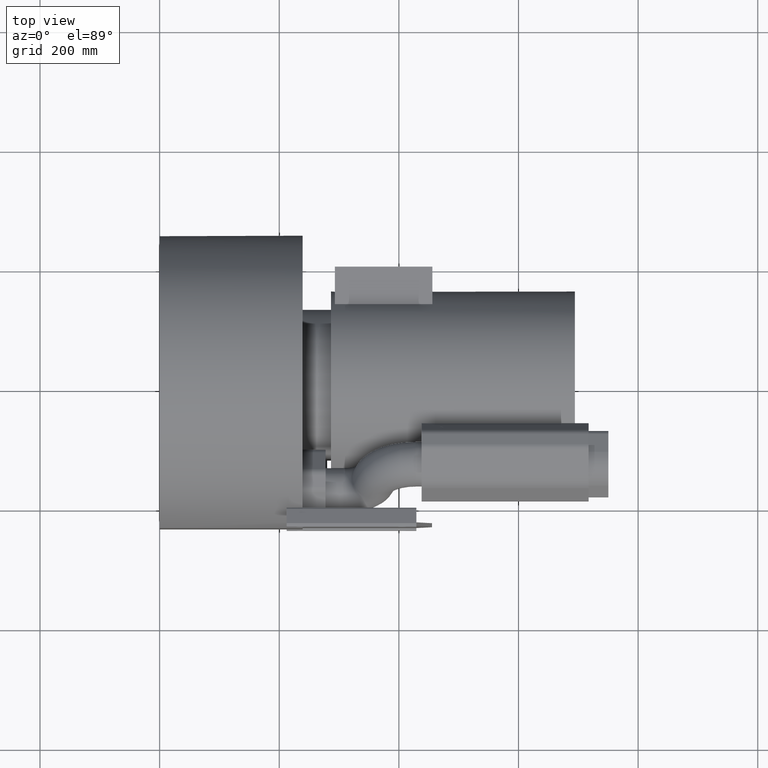
[diagram: clean part render]
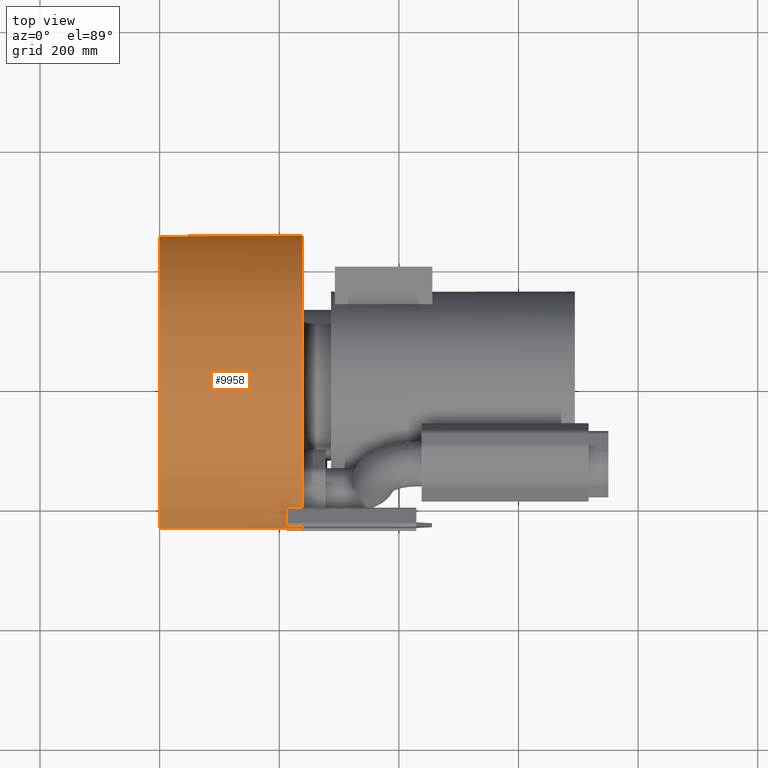
[diagram: same view with one face highlighted and labeled with its STEP entity id]
A machine part, top view. The second image highlights one B-rep face of the part: STEP entity #9958.
In plain terms, the highlighted cylindrical surface (partial cylindrical patch) has radius 250 mm, axis along (1, 0, 0).
Its self-contained STEP definition (entity closure, byte-faithful):
#6292=CARTESIAN_POINT('',(0.0,-240.0,-70.0));
#6293=VERTEX_POINT('',#6292);
#6294=CARTESIAN_POINT('',(0.0,-240.0,70.0));
#6295=VERTEX_POINT('',#6294);
#6302=CARTESIAN_POINT('',(0.0,0.0,0.0));
#6303=DIRECTION('',(1.0,0.0,0.0));
#6304=DIRECTION('',(0.0,1.0,0.0));
#6305=AXIS2_PLACEMENT_3D('',#6302,#6303,#6304);
#6306=CIRCLE('',#6305,250.0);
#6307=EDGE_CURVE('',#6293,#6295,#6306,.T.);
#9617=CARTESIAN_POINT('',(239.00000000000003,-240.0,70.0));
#9618=VERTEX_POINT('',#9617);
#9619=CARTESIAN_POINT('',(0.0,-240.0,70.0));
#9620=DIRECTION('',(1.0,0.0,0.0));
#9621=VECTOR('',#9620,239.00000000000003);
#9622=LINE('',#9619,#9621);
#9623=EDGE_CURVE('',#6295,#9618,#9622,.T.);
#9626=CARTESIAN_POINT('',(239.00000000000003,-240.0,-70.0));
#9627=VERTEX_POINT('',#9626);
#9628=CARTESIAN_POINT('',(239.00000000000003,-240.0,-70.0));
#9629=DIRECTION('',(-1.0,0.0,0.0));
#9630=VECTOR('',#9629,239.00000000000003);
#9631=LINE('',#9628,#9630);
#9632=EDGE_CURVE('',#9627,#6293,#9631,.T.);
#9710=CARTESIAN_POINT('',(119.50000000000003,0.0,0.0));
#9711=DIRECTION('',(1.0,0.0,0.0));
#9712=DIRECTION('',(0.0,1.0,0.0));
#9713=AXIS2_PLACEMENT_3D('',#9710,#9711,#9712);
#9714=CYLINDRICAL_SURFACE('',#9713,250.0);
#9715=CARTESIAN_POINT('',(212.30000000000004,-237.0,-79.567581338130452));
#9716=VERTEX_POINT('',#9715);
#9717=CARTESIAN_POINT('',(239.00000000000003,-237.0,-79.567581338130452));
#9718=VERTEX_POINT('',#9717);
#9719=CARTESIAN_POINT('',(212.30000000000004,-237.0,-79.567581338130452));
#9720=DIRECTION('',(1.0,0.0,0.0));
#9721=VECTOR('',#9720,26.69999999999996);
#9722=LINE('',#9719,#9721);
#9723=EDGE_CURVE('',#9716,#9718,#9722,.T.);
#9724=ORIENTED_EDGE('',*,*,#9723,.T.);
#9725=CARTESIAN_POINT('',(239.00000000000003,0.0,0.0));
#9726=DIRECTION('',(1.0,0.0,0.0));
#9727=DIRECTION('',(0.0,1.0,0.0));
#9728=AXIS2_PLACEMENT_3D('',#9725,#9726,#9727);
#9729=CIRCLE('',#9728,250.0);
#9730=EDGE_CURVE('',#9627,#9718,#9729,.T.);
#9731=ORIENTED_EDGE('',*,*,#9730,.F.);
#9732=ORIENTED_EDGE('',*,*,#9632,.T.);
#9733=ORIENTED_EDGE('',*,*,#6307,.T.);
#9734=ORIENTED_EDGE('',*,*,#9623,.T.);
#9735=CARTESIAN_POINT('',(239.00000000000003,-237.0,79.567581338130452));
#9736=VERTEX_POINT('',#9735);
#9737=CARTESIAN_POINT('',(239.00000000000003,0.0,0.0));
#9738=DIRECTION('',(1.0,0.0,0.0));
#9739=DIRECTION('',(0.0,1.0,0.0));
#9740=AXIS2_PLACEMENT_3D('',#9737,#9738,#9739);
#9741=CIRCLE('',#9740,250.0);
#9742=EDGE_CURVE('',#9736,#9618,#9741,.T.);
#9743=ORIENTED_EDGE('',*,*,#9742,.F.);
#9744=CARTESIAN_POINT('',(212.30000000000004,-237.0,79.567581338130452));
#9745=VERTEX_POINT('',#9744);
#9746=CARTESIAN_POINT('',(239.0,-237.0,79.567581338130452));
#9747=DIRECTION('',(-1.0,0.0,0.0));
#9748=VECTOR('',#9747,26.69999999999996);
#9749=LINE('',#9746,#9748);
#9750=EDGE_CURVE('',#9736,#9745,#9749,.T.);
#9751=ORIENTED_EDGE('',*,*,#9750,.T.);
#9752=CARTESIAN_POINT('',(212.30000000000004,-230.99999999999997,95.598117136270048));
#9753=VERTEX_POINT('',#9752);
#9754=CARTESIAN_POINT('',(212.30000000000007,0.0,0.0));
#9755=DIRECTION('',(-1.0,0.0,0.0));
#9756=DIRECTION('',(0.0,1.0,0.0));
#9757=AXIS2_PLACEMENT_3D('',#9754,#9755,#9756);
#9758=CIRCLE('',#9757,250.0);
#9759=EDGE_CURVE('',#9745,#9753,#9758,.T.);
#9760=ORIENTED_EDGE('',*,*,#9759,.T.);
#9761=CARTESIAN_POINT('',(239.00000000000003,-230.99999999999997,95.598117136270048));
#9762=VERTEX_POINT('',#9761);
#9763=CARTESIAN_POINT('',(212.30000000000004,-230.99999999999997,95.598117136270048));
#9764=DIRECTION('',(1.0,0.0,0.0));
#9765=VECTOR('',#9764,26.69999999999996);
#9766=LINE('',#9763,#9765);
#9767=EDGE_CURVE('',#9753,#9762,#9766,.T.);
#9768=ORIENTED_EDGE('',*,*,#9767,.T.);
#9769=CARTESIAN_POINT('',(239.00000000000003,-230.99999999999997,-95.598117136270048));
#9770=VERTEX_POINT('',#9769);
#9771=CARTESIAN_POINT('',(239.00000000000003,0.0,0.0));
#9772=DIRECTION('',(1.0,0.0,0.0));
#9773=DIRECTION('',(0.0,1.0,0.0));
#9774=AXIS2_PLACEMENT_3D('',#9771,#9772,#9773);
#9775=CIRCLE('',#9774,250.0);
#9776=EDGE_CURVE('',#9770,#9762,#9775,.T.);
#9777=ORIENTED_EDGE('',*,*,#9776,.F.);
#9778=CARTESIAN_POINT('',(212.30000000000004,-230.99999999999997,-95.598117136270048));
#9779=VERTEX_POINT('',#9778);
#9780=CARTESIAN_POINT('',(239.0,-230.99999999999997,-95.598117136270048));
#9781=DIRECTION('',(-1.0,0.0,0.0));
#9782=VECTOR('',#9781,26.69999999999996);
#9783=LINE('',#9780,#9782);
#9784=EDGE_CURVE('',#9770,#9779,#9783,.T.);
#9785=ORIENTED_EDGE('',*,*,#9784,.T.);
#9786=CARTESIAN_POINT('',(212.30000000000007,0.0,0.0));
#9787=DIRECTION('',(-1.0,0.0,0.0));
#9788=DIRECTION('',(0.0,1.0,0.0));
#9789=AXIS2_PLACEMENT_3D('',#9786,#9787,#9788);
#9790=CIRCLE('',#9789,250.0);
#9791=EDGE_CURVE('',#9779,#9716,#9790,.T.);
#9792=ORIENTED_EDGE('',*,*,#9791,.T.);
#9793=EDGE_LOOP('',(#9724,#9731,#9732,#9733,#9734,#9743,#9751,#9760,#9768,#9777,#9785,#9792));
#9794=FACE_OUTER_BOUND('',#9793,.T.);
#9795=CARTESIAN_POINT('',(59.956302285559751,19.604720892621494,-249.23012442062941));
#9796=VERTEX_POINT('',#9795);
#9797=CARTESIAN_POINT('',(53.73657022004123,13.384988827102953,-249.64142699900259));
#9798=VERTEX_POINT('',#9797);
#9799=CARTESIAN_POINT('',(59.956302285559772,19.604720892621458,-249.23012442062938));
#9800=CARTESIAN_POINT('',(58.553713697414381,18.994858017516862,-249.2780969178425));
#9801=CARTESIAN_POINT('',(57.276526113299376,18.105229530388399,-249.34562558555717));
#9802=CARTESIAN_POINT('',(55.238342632502324,16.068182217471186,-249.48518534443002));
#9803=CARTESIAN_POINT('',(54.347187702336306,14.789312892971367,-249.56613155562508));
#9804=CARTESIAN_POINT('',(53.736570220041258,13.384988827102941,-249.64142699900259));
#9805=B_SPLINE_CURVE_WITH_KNOTS('',3,(#9799,#9800,#9801,#9802,#9803,#9804),.UNSPECIFIED.,.F.,.U.,(4,2,4),(0.471877740609668,0.904228136109442,1.337378030874117),.UNSPECIFIED.);
#9806=EDGE_CURVE('',#9796,#9798,#9805,.T.);
#9807=ORIENTED_EDGE('',*,*,#9806,.T.);
#9808=CARTESIAN_POINT('',(37.024545252818641,-25.050037242990172,-248.74182526090138));
#9809=VERTEX_POINT('',#9808);
#9810=CARTESIAN_POINT('',(47.91661143930304,0.0,0.0));
#9811=DIRECTION('',(-0.917060074385124,0.398749068925246,0.0));
#9812=DIRECTION('',(0.398749068925246,0.917060074385124,0.0));
#9813=AXIS2_PLACEMENT_3D('',#9810,#9811,#9812);
#9814=ELLIPSE('',#9813,272.61027601449285,250.00000000000009);
#9815=EDGE_CURVE('',#9798,#9809,#9814,.T.);
#9816=ORIENTED_EDGE('',*,*,#9815,.T.);
#9817=CARTESIAN_POINT('',(37.024545252818655,-56.949962757009871,-243.42699468624096));
#9818=VERTEX_POINT('',#9817);
#9819=CARTESIAN_POINT('',(37.024545252818641,-25.050037242990172,-248.74182526090141));
#9820=CARTESIAN_POINT('',(36.925366624143884,-25.278132472992919,-248.71885447984951));
#9821=CARTESIAN_POINT('',(36.828325249040944,-25.507130938567684,-248.6954757522019));
#9822=CARTESIAN_POINT('',(35.715148092472646,-28.203714625992212,-248.41638538460046));
#9823=CARTESIAN_POINT('',(34.947761443466511,-30.771905857758011,-248.11256803408759));
#9824=CARTESIAN_POINT('',(33.943596617481894,-35.924141583265047,-247.41910326023518));
#9825=CARTESIAN_POINT('',(33.706948228223595,-38.508197043255699,-247.02934938522006));
#9826=CARTESIAN_POINT('',(33.706948228223595,-43.545115426793153,-246.19195675784306));
#9827=CARTESIAN_POINT('',(33.953654591706332,-46.169126397130483,-245.71417989115326));
#9828=CARTESIAN_POINT('',(34.985119978749481,-51.376137993634849,-244.67843974635272));
#9829=CARTESIAN_POINT('',(35.769547744214108,-53.95922122793359,-244.12056190589166));
#9830=CARTESIAN_POINT('',(36.876251663810848,-56.605605934797566,-243.5073651817292));
#9831=CARTESIAN_POINT('',(36.949797118226783,-56.778053816748965,-243.46721293630839));
#9832=CARTESIAN_POINT('',(37.024545252818641,-56.949962757009871,-243.42699468624096));
#9833=B_SPLINE_CURVE_WITH_KNOTS('',3,(#9819,#9820,#9821,#9822,#9823,#9824,#9825,#9826,#9827,#9828,#9829,#9830,#9831,#9832),.UNSPECIFIED.,.F.,.U.,(4,2,2,2,2,2,4),(4.458828566136156,4.529434256224317,5.28723551556579,6.045036774907262,6.819051297352967,7.593065819798673,7.647190266424623),.UNSPECIFIED.);
#9834=EDGE_CURVE('',#9809,#9818,#9833,.T.);
#9835=ORIENTED_EDGE('',*,*,#9834,.T.);
#9836=CARTESIAN_POINT('',(53.73657022004123,-95.384988827102973,-231.08808689859683));
#9837=VERTEX_POINT('',#9836);
#9838=CARTESIAN_POINT('',(12.261996692506472,0.0,0.0));
#9839=DIRECTION('',(-0.917060074385124,-0.398749068925246,0.0));
#9840=DIRECTION('',(-0.398749068925246,0.917060074385124,0.0));
#9841=AXIS2_PLACEMENT_3D('',#9838,#9839,#9840);
#9842=ELLIPSE('',#9841,272.61027601449285,250.00000000000003);
#9843=EDGE_CURVE('',#9818,#9837,#9842,.T.);
#9844=ORIENTED_EDGE('',*,*,#9843,.T.);
#9845=CARTESIAN_POINT('',(59.956302285559751,-101.6047208926215,-228.42171677039047));
#9846=VERTEX_POINT('',#9845);
#9847=CARTESIAN_POINT('',(53.736570220041258,-95.384988827102944,-231.08808689859686));
#9848=CARTESIAN_POINT('',(54.366715411751883,-96.834223549935388,-230.48989406355955));
#9849=CARTESIAN_POINT('',(55.299256555481591,-98.160397788476175,-229.92578115352629));
#9850=CARTESIAN_POINT('',(57.368846409452068,-100.16556552676394,-229.05877940811368));
#9851=CARTESIAN_POINT('',(58.596442513009379,-101.013437035305,-228.68472692608134));
#9852=CARTESIAN_POINT('',(59.956302285559772,-101.60472089262146,-228.42171677039047));
#9853=B_SPLINE_CURVE_WITH_KNOTS('',3,(#9847,#9848,#9849,#9850,#9851,#9852),.UNSPECIFIED.,.F.,.U.,(4,2,4),(2.372065451096253,2.848384452803815,3.274840764448835),.UNSPECIFIED.);
#9854=EDGE_CURVE('',#9837,#9846,#9853,.T.);
#9855=ORIENTED_EDGE('',*,*,#9854,.T.);
#9856=CARTESIAN_POINT('',(78.81501117289703,-109.8047208926215,-224.59502058080784));
#9857=VERTEX_POINT('',#9856);
#9858=CARTESIAN_POINT('',(-173.71855782335541,0.0,0.0));
#9859=DIRECTION('',(-0.398749068925247,-0.917060074385124,0.0));
#9860=DIRECTION('',(-0.917060074385124,0.398749068925247,0.0));
#9861=AXIS2_PLACEMENT_3D('',#9858,#9859,#9860);
#9862=ELLIPSE('',#9861,626.96071159194935,249.99999999999997);
#9863=EDGE_CURVE('',#9846,#9857,#9862,.T.);
#9864=ORIENTED_EDGE('',*,*,#9863,.T.);
#9865=CARTESIAN_POINT('',(88.384988827102973,-109.8047208926215,-224.59502058080784));
#9866=VERTEX_POINT('',#9865);
#9867=CARTESIAN_POINT('',(78.815011172896973,-109.80472089262163,-224.59502058080776));
#9868=CARTESIAN_POINT('',(78.896221024561129,-109.84003194109394,-224.57775697535513));
#9869=CARTESIAN_POINT('',(78.977891167646661,-109.87447407040996,-224.56090786975983));
#9870=CARTESIAN_POINT('',(80.507985718021274,-110.49984568451423,-224.25480656190683));
#9871=CARTESIAN_POINT('',(82.097294869681321,-110.80000000000015,-224.10568935214468));
#9872=CARTESIAN_POINT('',(85.102705130318668,-110.80000000000015,-224.10568935214468));
#9873=CARTESIAN_POINT('',(86.692014281978715,-110.49984568451421,-224.25480656190683));
#9874=CARTESIAN_POINT('',(88.222108832353314,-109.87447407040996,-224.5609078697598));
#9875=CARTESIAN_POINT('',(88.30377897543886,-109.84003194109394,-224.57775697535513));
#9876=CARTESIAN_POINT('',(88.384988827103044,-109.80472089262163,-224.59502058080776));
#9877=B_SPLINE_CURVE_WITH_KNOTS('',3,(#9867,#9868,#9869,#9870,#9871,#9872,#9873,#9874,#9875,#9876),.UNSPECIFIED.,.F.,.U.,(4,2,2,2,4),(3.303125966092012,3.328685646668832,3.779497185764432,4.230308724860032,4.255868405436856),.UNSPECIFIED.);
#9878=EDGE_CURVE('',#9857,#9866,#9877,.T.);
#9879=ORIENTED_EDGE('',*,*,#9878,.T.);
#9880=CARTESIAN_POINT('',(130.38498882710294,-91.542601144262292,-232.6369535902293));
#9881=VERTEX_POINT('',#9880);
#9882=CARTESIAN_POINT('',(340.91855782335574,0.0,0.0));
#9883=DIRECTION('',(0.398749068925247,-0.917060074385124,0.0));
#9884=DIRECTION('',(0.917060074385124,0.398749068925247,0.0));
#9885=AXIS2_PLACEMENT_3D('',#9882,#9883,#9884);
#9886=ELLIPSE('',#9885,626.9607115919498,250.00000000000003);
#9887=EDGE_CURVE('',#9866,#9881,#9886,.T.);
#9888=ORIENTED_EDGE('',*,*,#9887,.T.);
#9889=CARTESIAN_POINT('',(137.59999999999997,-80.537880251640814,-236.67203012728893));
#9890=VERTEX_POINT('',#9889);
#9891=CARTESIAN_POINT('',(130.38498882710294,-91.542601144262292,-232.6369535902293));
#9892=CARTESIAN_POINT('',(131.80069198154709,-90.927035893438756,-232.87917841033962));
#9893=CARTESIAN_POINT('',(133.07753621229247,-90.030906787825487,-233.22864070910788));
#9894=CARTESIAN_POINT('',(135.16520475152083,-87.943238248597112,-234.02419198939813));
#9895=CARTESIAN_POINT('',(136.08611585672006,-86.587111421730242,-234.53174507598806));
#9896=CARTESIAN_POINT('',(137.30344498951786,-83.633231600786772,-235.60125187412669));
#9897=CARTESIAN_POINT('',(137.59999999999999,-82.035271680549158,-236.16247802040758));
#9898=CARTESIAN_POINT('',(137.59999999999999,-80.537880251640829,-236.67203012728893));
#9899=B_SPLINE_CURVE_WITH_KNOTS('',3,(#9891,#9892,#9893,#9894,#9895,#9896,#9897,#9898),.UNSPECIFIED.,.F.,.U.,(4,2,2,4),(4.195030757330069,4.637830591447072,5.112345290576177,5.586859989705282),.UNSPECIFIED.);
#9900=EDGE_CURVE('',#9881,#9890,#9899,.T.);
#9901=ORIENTED_EDGE('',*,*,#9900,.T.);
#9902=CARTESIAN_POINT('',(137.59999999999999,-1.462119748359212,-249.99572437512097));
#9903=VERTEX_POINT('',#9902);
#9904=CARTESIAN_POINT('',(137.59999999999999,0.0,0.0));
#9905=DIRECTION('',(1.0,0.0,0.0));
#9906=DIRECTION('',(0.0,1.0,0.0));
#9907=AXIS2_PLACEMENT_3D('',#9904,#9905,#9906);
#9908=CIRCLE('',#9907,250.0);
#9909=EDGE_CURVE('',#9890,#9903,#9908,.T.);
#9910=ORIENTED_EDGE('',*,*,#9909,.T.);
#9911=CARTESIAN_POINT('',(130.38498882710294,9.542601144262276,-249.81781114124254));
#9912=VERTEX_POINT('',#9911);
#9913=CARTESIAN_POINT('',(137.59999999999999,-1.462119748359255,-249.99572437512097));
#9914=CARTESIAN_POINT('',(137.59999999999999,0.044712292198444,-250.00453720137816));
#9915=CARTESIAN_POINT('',(137.29883766504261,1.651925356659723,-249.99891327438519));
#9916=CARTESIAN_POINT('',(136.07421290143822,4.608378062645645,-249.9618937906269));
#9917=CARTESIAN_POINT('',(135.15076005843355,5.957631355470497,-249.93127543782478));
#9918=CARTESIAN_POINT('',(133.06652603995744,8.041966293945515,-249.87269954877343));
#9919=CARTESIAN_POINT('',(131.78835497065026,8.932400178446693,-249.84111974525288));
#9920=CARTESIAN_POINT('',(130.38498882710294,9.542601144262275,-249.81781114124254));
#9921=B_SPLINE_CURVE_WITH_KNOTS('',3,(#9913,#9914,#9915,#9916,#9917,#9918,#9919,#9920),.UNSPECIFIED.,.F.,.U.,(4,2,2,4),(5.425337572353531,5.877394915831339,6.329452259309147,6.761856517195074),.UNSPECIFIED.);
#9922=EDGE_CURVE('',#9903,#9912,#9921,.T.);
#9923=ORIENTED_EDGE('',*,*,#9922,.T.);
#9924=CARTESIAN_POINT('',(88.384988827102973,27.804720892621503,-248.4489836889727));
#9925=VERTEX_POINT('',#9924);
#9926=CARTESIAN_POINT('',(152.33146894998268,0.0,0.0));
#9927=DIRECTION('',(0.398749068925247,0.917060074385124,0.0));
#9928=DIRECTION('',(-0.917060074385124,0.398749068925247,0.0));
#9929=AXIS2_PLACEMENT_3D('',#9926,#9927,#9928);
#9930=ELLIPSE('',#9929,626.96071159194958,250.0);
#9931=EDGE_CURVE('',#9912,#9925,#9930,.T.);
#9932=ORIENTED_EDGE('',*,*,#9931,.T.);
#9933=CARTESIAN_POINT('',(78.81501117289703,27.804720892621482,-248.4489836889727));
#9934=VERTEX_POINT('',#9933);
#9935=CARTESIAN_POINT('',(88.38498882710303,27.804720892621617,-248.4489836889727));
#9936=CARTESIAN_POINT('',(88.320470769604611,27.832774142430374,-248.44584416000589));
#9937=CARTESIAN_POINT('',(88.255698333703918,27.860263286642947,-248.44276295210335));
#9938=CARTESIAN_POINT('',(86.713679265609983,28.498741903214722,-248.37109419072388));
#9939=CARTESIAN_POINT('',(85.107012667771457,28.800000000000146,-248.33557940818707));
#9940=CARTESIAN_POINT('',(83.599999999999994,28.800000000000146,-248.33557940818707));
#9941=CARTESIAN_POINT('',(82.092987332228546,28.800000000000146,-248.33557940818707));
#9942=CARTESIAN_POINT('',(80.486320734390006,28.498741903214718,-248.37109419072388));
#9943=CARTESIAN_POINT('',(78.944301666296084,27.86026328664294,-248.44276295210335));
#9944=CARTESIAN_POINT('',(78.879529230395377,27.832774142430367,-248.44584416000589));
#9945=CARTESIAN_POINT('',(78.815011172896973,27.804720892621617,-248.4489836889727));
#9946=B_SPLINE_CURVE_WITH_KNOTS('',3,(#9935,#9936,#9937,#9938,#9939,#9940,#9941,#9942,#9943,#9944,#9945),.UNSPECIFIED.,.F.,.U.,(4,2,3,2,4),(-0.472003107131994,-0.452103800331436,0.0,0.452103800331435,0.472003107131989),.UNSPECIFIED.);
#9947=EDGE_CURVE('',#9925,#9934,#9946,.T.);
#9948=ORIENTED_EDGE('',*,*,#9947,.T.);
#9949=CARTESIAN_POINT('',(14.8685310500173,0.0,0.0));
#9950=DIRECTION('',(-0.398749068925246,0.917060074385124,0.0));
#9951=DIRECTION('',(0.917060074385124,0.398749068925246,0.0));
#9952=AXIS2_PLACEMENT_3D('',#9949,#9950,#9951);
#9953=ELLIPSE('',#9952,626.96071159195026,250.0);
#9954=EDGE_CURVE('',#9934,#9796,#9953,.T.);
#9955=ORIENTED_EDGE('',*,*,#9954,.T.);
#9956=EDGE_LOOP('',(#9807,#9816,#9835,#9844,#9855,#9864,#9879,#9888,#9901,#9910,#9923,#9932,#9948,#9955));
#9957=FACE_BOUND('',#9956,.T.);
#9958=ADVANCED_FACE('',(#9794,#9957),#9714,.T.);